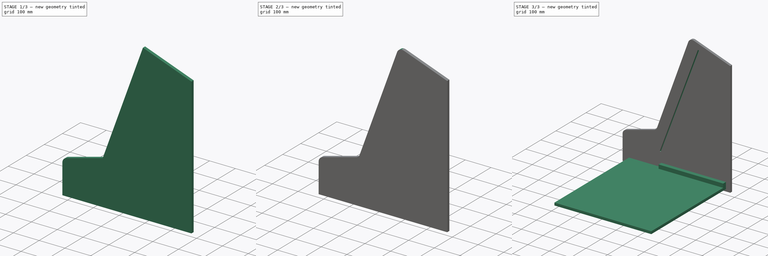
[diagram: build sequence overview — one tinted view per stage of 3, left to right]
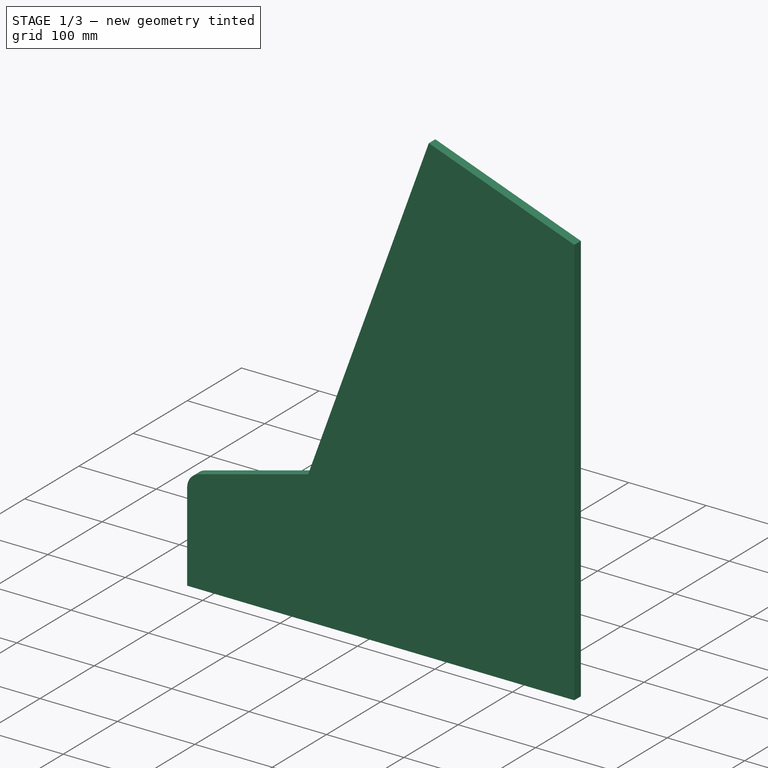
[diagram: stage 1 of 3 — iso view after this stage's code; geometry added in this stage tinted green]
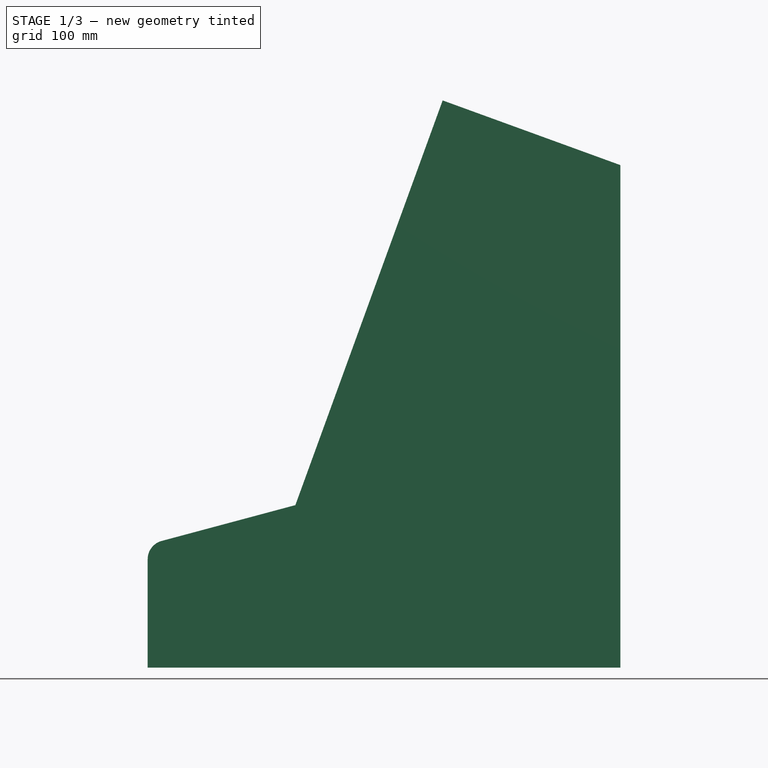
[diagram: stage 1 of 3 — front view after this stage's code; geometry added in this stage tinted green]
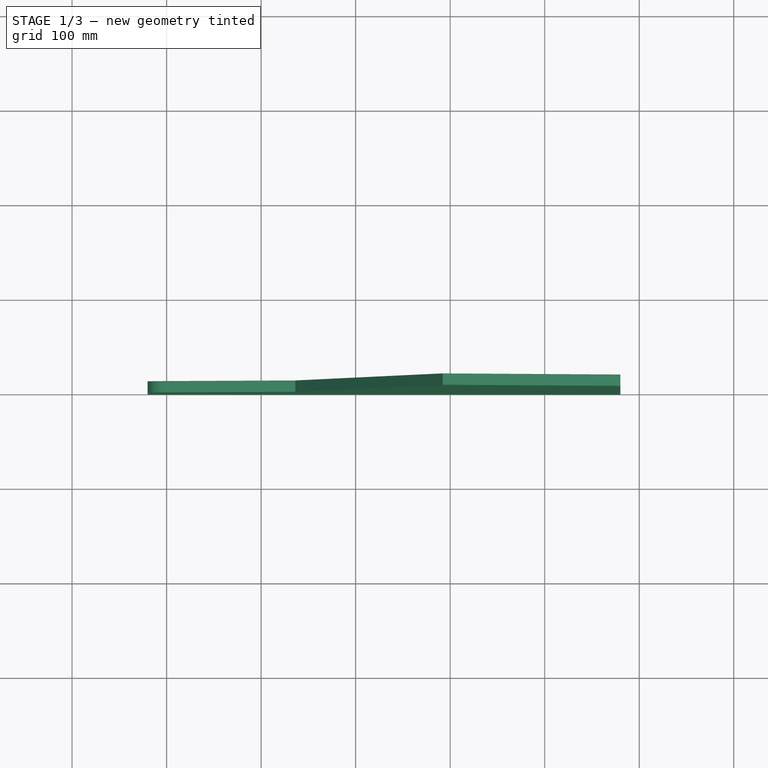
[diagram: stage 1 of 3 — top view after this stage's code; geometry added in this stage tinted green]
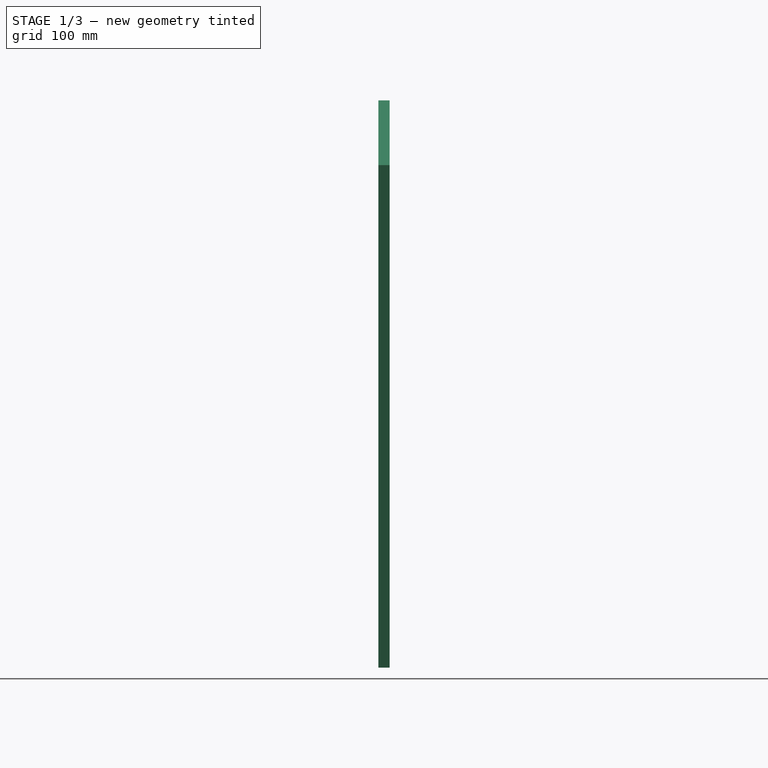
[diagram: stage 1 of 3 — right view after this stage's code; geometry added in this stage tinted green]
FCSTD DOCUMENT  (FreeCAD 0.19R24291 (Git))
Label: 9000_ASM_Profile_Sidewall_Schrinkwrap
License: All rights reserved
LicenseURL: http://en.wikipedia.org/wiki/All_rights_reserved
objects: Sketcher::SketchObject×7, PartDesign::Pad×3, PartDesign::Fillet×3, PartDesign::Pocket×2, Spreadsheet::Sheet×1, PartDesign::Body×1
note: 24 computed .brp shape members not serialized (recipe doc carries the construction recipe); baked Part::Feature solids carry a one-line shape summary decoded from their .brp

FEATURE [Spreadsheet::Sheet] Spreadsheet  label="XLS"
  cells = B2=BODY FLOOR; E2=Ext.Ref; B3=Z=; C3(Z)=12; D3=.T; E3=Thichness; F3=16mm or 19mm for chipboard; B4=Y=; C4=500; D4=.W; E4=Width; F4=12mm for Sperholtz ; B5=X=; C5=400; D5=.D; E5=Depth; B7=Position Side Wall; D8=Left; E8=Right; B9=X0; D9(X0)==+C5; B10=Y0; C10=Y0_2; D10(Y0)==+C4; E10(Y0_2)==+D10 - D11; B11=Z0; D11(Z0)=13; B15=Position Front Wall; B16=x; C16=X0_Front; D16(X0_Front)==+H16 * abs(cos(D19)); F16=Distance on incline; G16=nS; H16(nS)=50; I16=mm; B17=y; C17=Y0_Front; D17(Y0_Front)=0; B18=z; C18=Z0_Front; D18(Z0_Front)==+H16 * abs(sin(D19)) + H18 + H20; F18=Hight of Incline; G18=nH; H18(nH)==125 + 2; I18=mm; B19=angle; C19=angley; D19(angley)=-70; F20=Thickness Material; H20=13; B22=Position Pedastil; B23=x; C23=x_pedastil; D23(x_pedastil)=0; B24=y; C24=y_pedastil; D24(y_pedastil)=0; B25=z; C25=z_pedastil; D25(z_pedastil)=-716; B27=Position Marquee; B28=x; C28==x_pedastil; B29=y; C29==y_pedastil; B30=z; C30==z_pedastil; B31=Incline
FEATURE [Sketcher::SketchObject] Sketch001
  FullyConstrained = false
  MapMode = 5
  Placement = pos=(0,0,0) rot=(1,0,0;1.5708rad)
  Support = -> [XZ_Plane]
  sketch-geometry (8):
    g0: LineSegment StartX=-20 StartY=-20 StartZ=0 EndX=-20 EndY=110 EndZ=0
    g1: LineSegment StartX=-20 StartY=110 StartZ=0 EndX=136.232 EndY=151.862 EndZ=0
    g2: LineSegment StartX=136.232 StartY=151.862 StartZ=0 EndX=292.061 EndY=580 EndZ=0
    g3: LineSegment StartX=292.061 StartY=580 StartZ=0 EndX=480 EndY=511.596 EndZ=0
    g4: LineSegment StartX=480 StartY=511.596 StartZ=0 EndX=480 EndY=-20 EndZ=0
    g5: LineSegment StartX=480 StartY=-20 StartZ=0 EndX=-20 EndY=-20 EndZ=0
    g6: GeomPoint X=91.409 Y=222.047 Z=0
    g7: GeomPoint X=-20 Y=-20 Z=0
  constraints (20):
    c: Coincident(g0,g1)
    c: Coincident(g1,g2)
    c: Coincident(g3,g4)
    c: Coincident(g4,g5)
    c: Coincident(g5,g0)
    c: Horizontal(g5)
    c: Vertical(g4)
    c: Vertical(g0)
    c: Angle(g5,g2) = 1.22173
    c: Angle(g3,g4) = 1.91986
    c: DistanceY(g4,g4) = 531.596
    c: DistanceX(g5,g5) = 500
    c: DistanceY(g0,g0) = 130
    c: Angle(g0,g1) = 1.8326
    c: Coincident(g2,g3)
    c: DistanceX(g7,g-1) = 20
    c: DistanceY(g7,g-1) = 20
    c: Coincident(g0,g7)
    c: Distance(g3) = 200
    c: DistanceY(g4,g2) = 600
FEATURE [PartDesign::Pad] Pad
  AllowMultiFace = false
  Direction = (1,1,1)
  Length = 12
  Length2 = 100
  Placement = pos=(0,0,0) rot=(1,0,0;1.5708rad)
  Profile = -> Sketch001
  Reversed = true
  Type = 0
  expr: Length = Spreadsheet.Z
FEATURE [Sketcher::SketchObject] Sketch002
  ExternalGeometry = -> [Pad]
  FullyConstrained = false
  MapMode = 5
  Placement = pos=(0,0,0) rot=(1,0,0;1.5708rad)
  Support = -> [Pad]
  sketch-geometry (12):
    g0: LineSegment StartX=465 StartY=-5 StartZ=0 EndX=465 EndY=501.093 EndZ=0
    g1: LineSegment StartX=465 StartY=501.093 StartZ=0 EndX=301.027 EndY=560.774 EndZ=0
    g2: LineSegment StartX=301.027 StartY=560.774 StartZ=0 EndX=147.657 EndY=139.394 EndZ=0
    g3: Circle CenterX=384.615 CenterY=546.313 CenterZ=0 NormalX=0 NormalY=0 NormalZ=1 AngleXU=0 Radius=15
    g4: Circle CenterX=268.58 CenterY=515.485 CenterZ=0 NormalX=0 NormalY=0 NormalZ=1 AngleXU=0 Radius=15
    g5: Circle CenterX=48.9787 CenterY=128.483 CenterZ=0 NormalX=0 NormalY=0 NormalZ=1 AngleXU=0 Radius=15
    g6: Circle CenterX=-20 CenterY=42.1215 CenterZ=0 NormalX=0 NormalY=0 NormalZ=1 AngleXU=0 Radius=15
    g7: Circle CenterX=480 CenterY=85.1486 CenterZ=0 NormalX=0 NormalY=0 NormalZ=1 AngleXU=0 Radius=15
    g8: Circle CenterX=199.413 CenterY=-20 CenterZ=0 NormalX=0 NormalY=0 NormalZ=1 AngleXU=0 Radius=15
    g9: LineSegment StartX=147.657 StartY=139.394 StartZ=0 EndX=-5 EndY=98.4901 EndZ=0
    g10: LineSegment StartX=-5 StartY=-5 StartZ=0 EndX=465 EndY=-5 EndZ=0
    g11: LineSegment StartX=-5 StartY=-5 StartZ=0 EndX=-5 EndY=98.4901 EndZ=0
  constraints (30):
    c: Vertical(g0)
    c: Coincident(g1,g0)
    c: Coincident(g2,g1)
    c: PointOnObject(g3,g-5)
    c: Radius(g3) = 15
    c: Equal(g3,g4)
    c: Tangent(g1,g3)
    c: Tangent(g2,g4)
    c: Parallel(g1,g-5)
    c: Parallel(g2,g-4)
    c: PointOnObject(g4,g-4)
    c: PointOnObject(g5,g-3)
    c: Equal(g5,g4)
    c: PointOnObject(g6,g-8)
    c: PointOnObject(g7,g-6)
    c: Equal(g5,g6)
    c: PointOnObject(g8,g-7)
    c: Equal(g6,g8)
    c: Equal(g8,g7)
    c: Tangent(g7,g0)
    c: Coincident(g9,g2)
    c: Coincident(g10,g0)
    c: Tangent(g9,g5)
    c: Tangent(g10,g8)
    c: Parallel(g-7,g10)
    c: Parallel(g9,g-3)
    c: Coincident(g11,g10)
    c: Coincident(g11,g9)
    c: Tangent(g11,g6)
    c: Vertical(g11)
FEATURE [PartDesign::Pocket] Pocket
  BaseFeature = -> Pad
  Length = 1
  Length2 = 100
  Placement = pos=(0,0,0) rot=(1,0,0;1.5708rad)
  Profile = -> Sketch002
  Reversed = true
  Type = 0
FEATURE [Sketcher::SketchObject] Sketch
  FullyConstrained = true
  MapMode = 5
  Placement = pos=(0,0,0) rot=(1,0,0;1.5708rad)
  Support = -> [Pocket]
  sketch-geometry (8):
    g0: LineSegment StartX=-20 StartY=-20 StartZ=0 EndX=480 EndY=-20 EndZ=0
    g1: LineSegment StartX=480 StartY=580 StartZ=0 EndX=-20 EndY=580 EndZ=0
    g2: LineSegment StartX=-20 StartY=580 StartZ=0 EndX=-20 EndY=-20 EndZ=0
    g3: LineSegment StartX=480 StartY=580 StartZ=0 EndX=480 EndY=-20 EndZ=0
    g4: LineSegment StartX=-30 StartY=590 StartZ=0 EndX=480 EndY=590 EndZ=0
    g5: LineSegment StartX=480 StartY=590 StartZ=0 EndX=480 EndY=-20 EndZ=0
    g6: LineSegment StartX=480 StartY=-20 StartZ=0 EndX=-30 EndY=-20 EndZ=0
    g7: LineSegment StartX=-30 StartY=-20 StartZ=0 EndX=-30 EndY=590 EndZ=0
  constraints (23):
    c: Coincident(g1,g2)
    c: Perpendicular(g1,g2)
    c: Vertical(g2)
    c: Coincident(g2,g0)
    c: Horizontal(g0)
    c: DistanceY(g2,g2) = 600
    c: DistanceX(g0,g0) = 500
    c: DistanceY(g0,g-1) = 20
    c: DistanceX(g0,g-1) = 20
    c: Coincident(g3,g1)
    c: Coincident(g3,g0)
    c: Perpendicular(g3,g1)
    c: Coincident(g4,g5)
    c: Coincident(g5,g6)
    c: Coincident(g6,g7)
    c: Coincident(g7,g4)
    c: Horizontal(g4)
    c: Horizontal(g6)
    c: Vertical(g5)
    c: Vertical(g7)
    c: Coincident(g5,g0)
    c: DistanceX(g4,g4) = 510
    c: DistanceY(g7,g7) = 610
FEATURE [PartDesign::Fillet] Fillet
  Base = -> Pocket [Edge2]
  BaseFeature = -> Pocket
  Placement = pos=(0,0,0) rot=(1,0,0;1.5708rad)
  Radius = 20
  SupportTransform = false
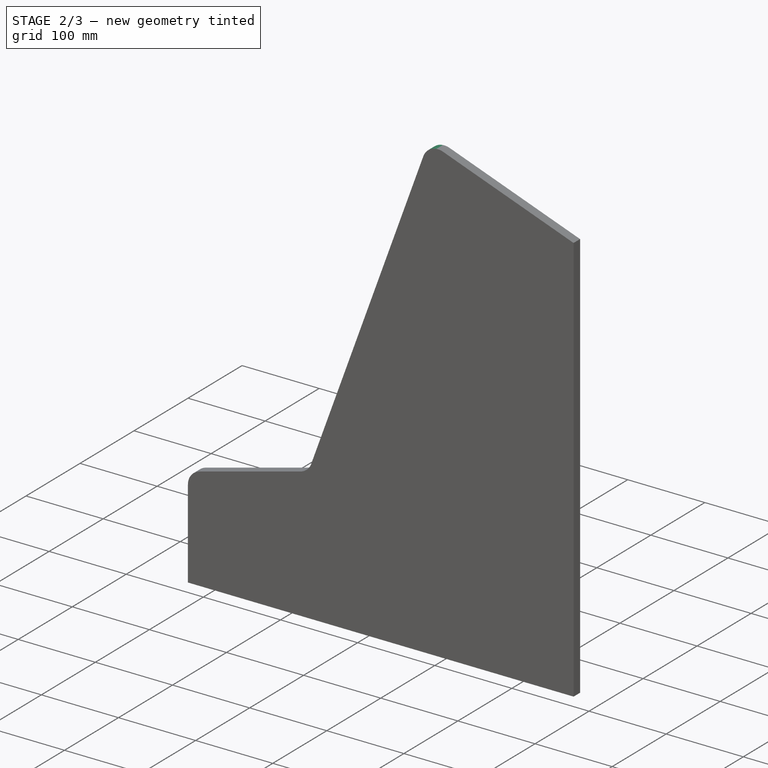
[diagram: stage 2 of 3 — iso view after this stage's code; geometry added in this stage tinted green]
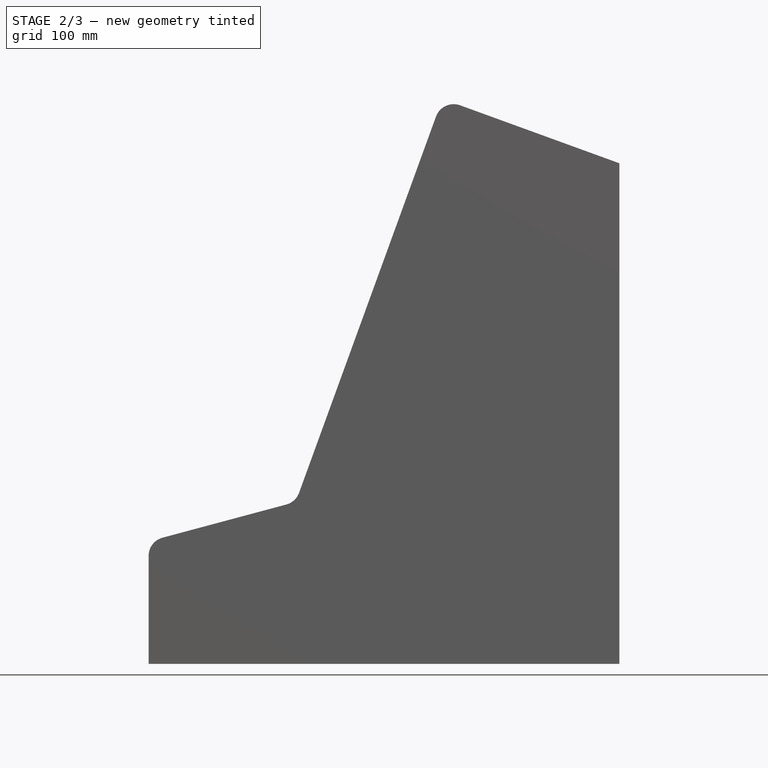
[diagram: stage 2 of 3 — front view after this stage's code; geometry added in this stage tinted green]
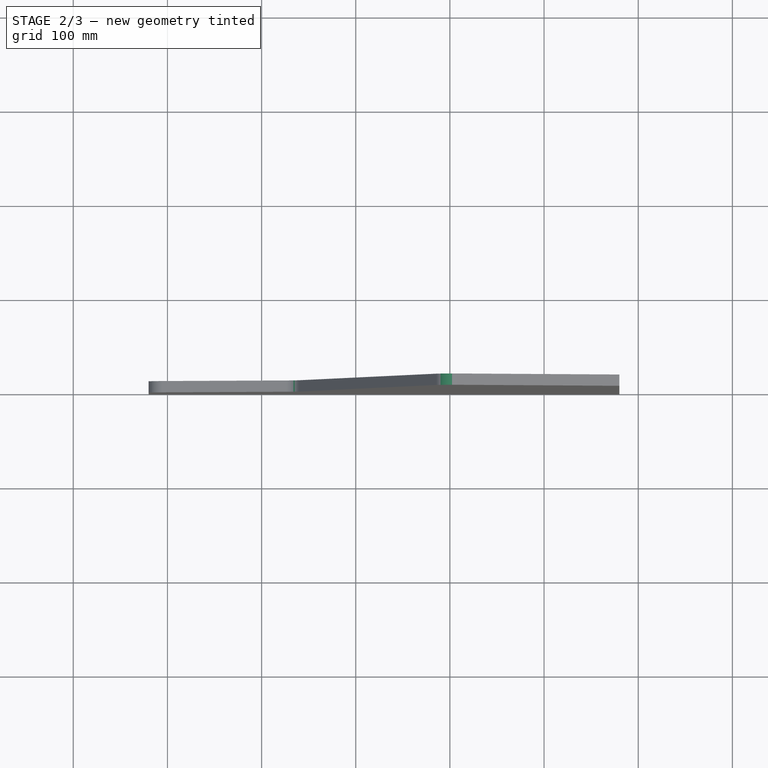
[diagram: stage 2 of 3 — top view after this stage's code; geometry added in this stage tinted green]
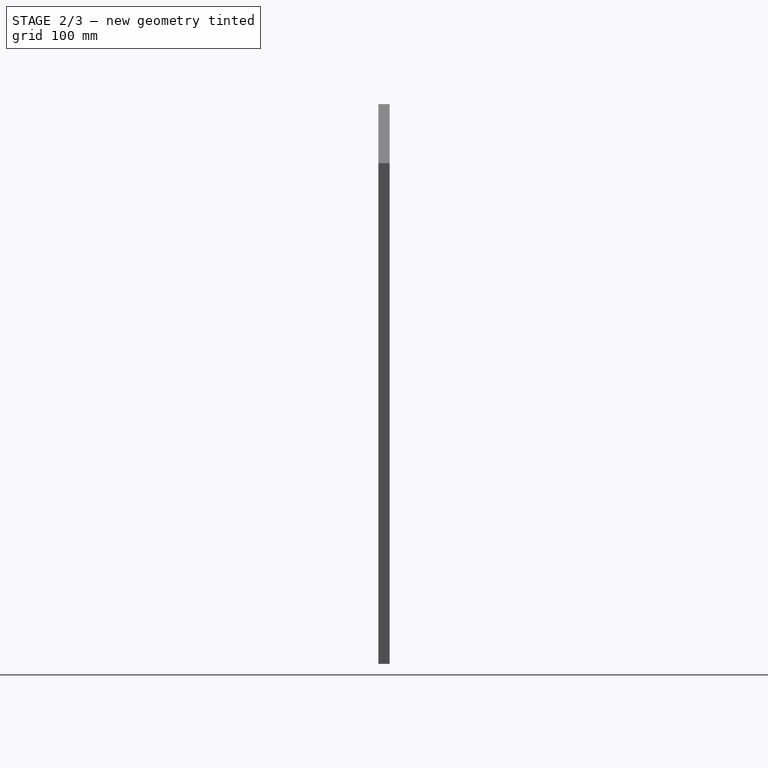
[diagram: stage 2 of 3 — right view after this stage's code; geometry added in this stage tinted green]
FEATURE [PartDesign::Fillet] Fillet001
  Base = -> Fillet [Edge25]
  BaseFeature = -> Fillet
  Placement = pos=(0,0,0) rot=(1,0,0;1.5708rad)
  Radius = 20
  SupportTransform = false
FEATURE [PartDesign::Fillet] Fillet002
  Base = -> Fillet001 [Edge22]
  BaseFeature = -> Fillet001
  Placement = pos=(0,0,0) rot=(1,0,0;1.5708rad)
  Radius = 20
  SupportTransform = false
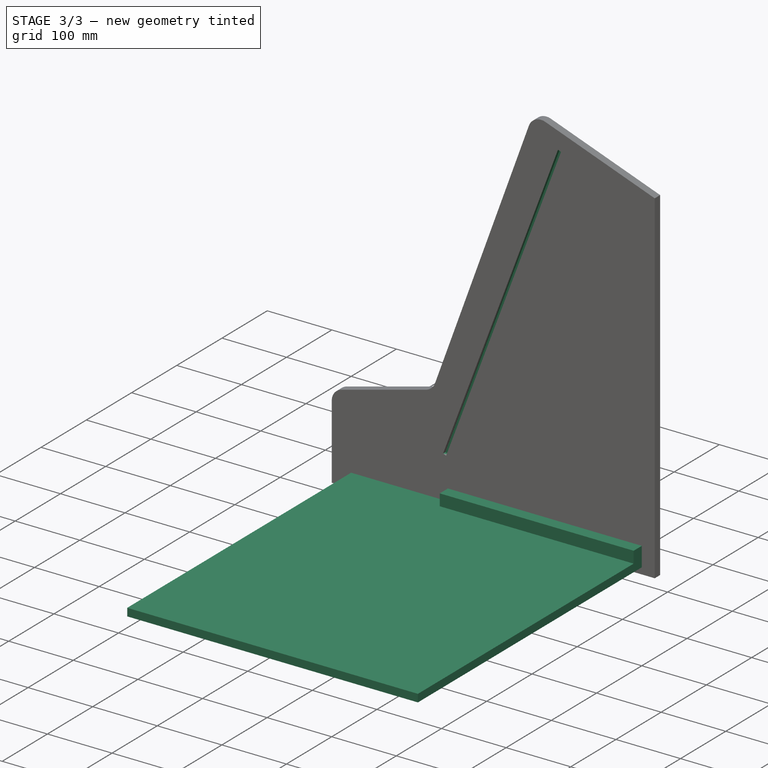
[diagram: stage 3 of 3 — iso view after this stage's code; geometry added in this stage tinted green]
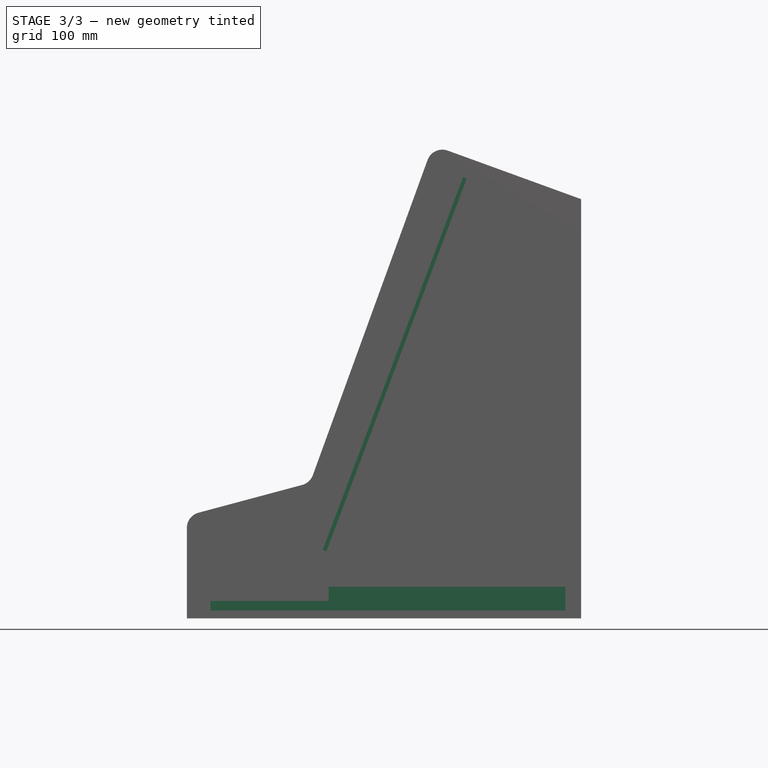
[diagram: stage 3 of 3 — front view after this stage's code; geometry added in this stage tinted green]
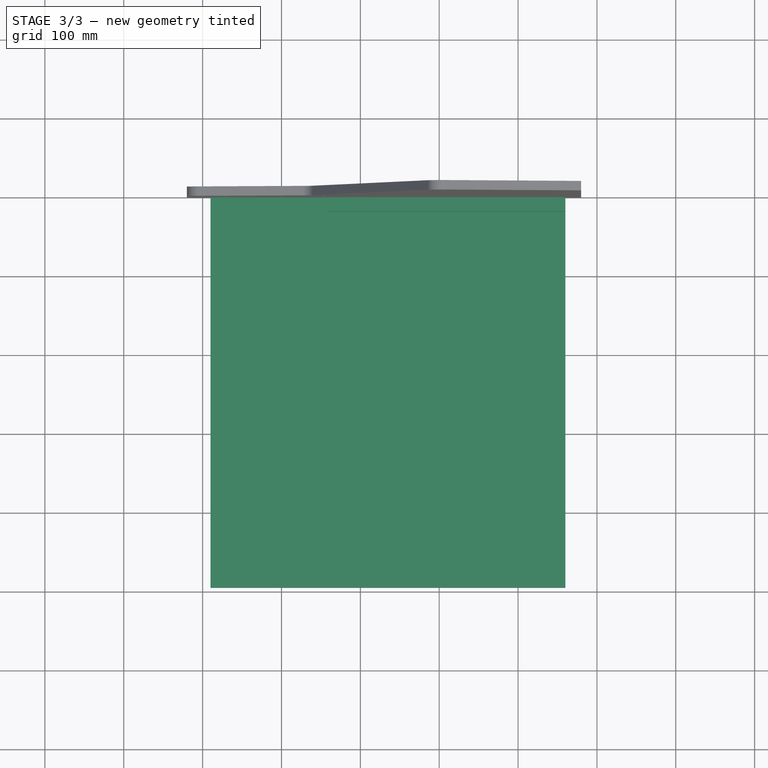
[diagram: stage 3 of 3 — top view after this stage's code; geometry added in this stage tinted green]
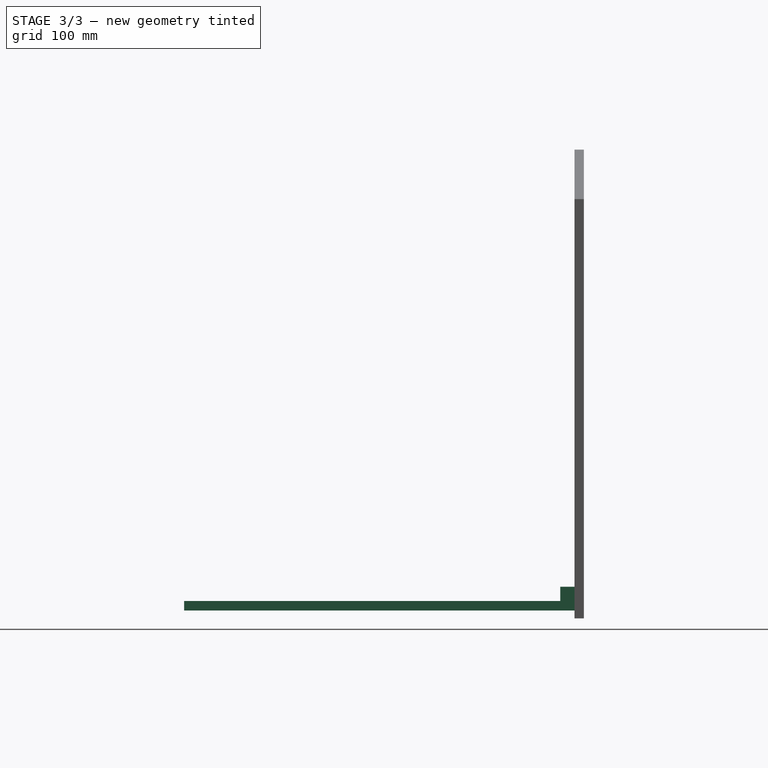
[diagram: stage 3 of 3 — right view after this stage's code; geometry added in this stage tinted green]
FEATURE [Sketcher::SketchObject] Sketch003
  ExternalGeometry = -> [Pocket]
  FullyConstrained = true
  MapMode = 5
  Placement = pos=(0,0,0) rot=(1,0,0;1.5708rad)
  Support = -> [Pocket]
  sketch-geometry (8):
    g0: LineSegment StartX=480 StartY=511.596 StartZ=0 EndX=343.745 EndY=561.189 EndZ=0
    g1: LineSegment StartX=480 StartY=-20 StartZ=0 EndX=125 EndY=-20 EndZ=0
    g2: LineSegment StartX=343.745 StartY=561.189 StartZ=0 EndX=334.938 EndY=537.791 EndZ=0
    g3: LineSegment StartX=334.938 StartY=537.791 StartZ=0 EndX=157.052 EndY=65.1589 EndZ=0
    g4: LineSegment StartX=157.052 StartY=65.1589 StartZ=0 EndX=125 EndY=-20 EndZ=0
    g5: LineSegment StartX=157.052 StartY=65.1589 StartZ=0 EndX=152.372 EndY=66.9202 EndZ=0
    g6: LineSegment StartX=152.372 StartY=66.9202 StartZ=0 EndX=330.259 EndY=539.553 EndZ=0
    g7: LineSegment StartX=330.259 StartY=539.553 StartZ=0 EndX=334.938 EndY=537.791 EndZ=0
  constraints (24):
    c: Coincident(g0,g-5)
    c: PointOnObject(g0,g-5)
    c: Distance(g0) = 145
    c: Coincident(g1,g-3)
    c: Horizontal(g1)
    c: Coincident(g2,g0)
    c: Coincident(g3,g2)
    c: Coincident(g4,g3)
    c: Coincident(g4,g1)
    c: Parallel(g4,g3)
    c: Parallel(g3,g2)
    c: Distance(g3) = 505
    c: Distance(g2) = 25
    c: Coincident(g5,g3)
    c: Coincident(g6,g5)
    c: Coincident(g7,g6)
    c: Coincident(g7,g3)
    c: Equal(g7,g5)
    c: Perpendicular(g3,g7)
    c: Equal(g6,g3)
    c: Distance(g5) = 5
    c: DistanceX(g-6,g1) = 145
    c: DistanceX(g-6,g5) = 172.372
    c: DistanceY(g1,g5) = 86.9202
FEATURE [PartDesign::Pocket] Pocket001
  BaseFeature = -> Fillet002
  Length = 5
  Length2 = 100
  Placement = pos=(0,0,0) rot=(1,0,0;1.5708rad)
  Profile = -> Sketch003
  Type = 0
FEATURE [Sketcher::SketchObject] Sketch004
  ExternalGeometry = -> [Pocket001]
  FullyConstrained = false
  MapMode = 5
  Placement = pos=(0,0,0) rot=(1,0,0;1.5708rad)
  Support = -> [Pocket001]
  sketch-geometry (5):
    g0: LineSegment StartX=10 StartY=2 StartZ=0 EndX=460 EndY=2 EndZ=0
    g1: LineSegment StartX=460 StartY=2 StartZ=0 EndX=460 EndY=-10 EndZ=0
    g2: LineSegment StartX=460 StartY=-10 StartZ=0 EndX=10 EndY=-10 EndZ=0
    g3: LineSegment StartX=10 StartY=-10 StartZ=0 EndX=10 EndY=2 EndZ=0
    g4: GeomPoint X=2.09569 Y=-20 Z=0
  constraints (13):
    c: Coincident(g0,g1)
    c: Coincident(g1,g2)
    c: Coincident(g2,g3)
    c: Coincident(g3,g0)
    c: Horizontal(g0)
    c: Horizontal(g2)
    c: Vertical(g1)
    c: Vertical(g3)
    c: DistanceY(g1,g0) = 12
    c: PointOnObject(g4,g-4)
    c: DistanceY(g-4,g2) = 10
    c: DistanceX(g-4,g2) = 30
    c: DistanceX(g0,g-4) = 20
FEATURE [PartDesign::Pad] Pad001
  BaseFeature = -> Pocket001
  Direction = (1,1,1)
  Length = 495
  Length2 = 100
  Placement = pos=(0,0,0) rot=(1,0,0;1.5708rad)
  Profile = -> Sketch004
  Type = 0
FEATURE [Sketcher::SketchObject] Sketch005
  ExternalGeometry = -> [Pad001]
  FullyConstrained = false
  MapMode = 5
  Placement = pos=(0,0,0) rot=(1,0,0;1.5708rad)
  Support = -> [Pad001]
  sketch-geometry (6):
    g0: LineSegment StartX=159.85 StartY=20 StartZ=0 EndX=460 EndY=20 EndZ=0
    g1: LineSegment StartX=460 StartY=20 StartZ=0 EndX=460 EndY=2 EndZ=0
    g2: LineSegment StartX=460 StartY=2 StartZ=0 EndX=159.85 EndY=2 EndZ=0
    g3: LineSegment StartX=159.85 StartY=2 StartZ=0 EndX=159.85 EndY=20 EndZ=0
    g4: GeomPoint X=460 Y=2 Z=0
    g5: GeomPoint X=460 Y=2 Z=0
  constraints (12):
    c: Coincident(g0,g1)
    c: Coincident(g1,g2)
    c: Horizontal(g0)
    c: Horizontal(g2)
    c: Vertical(g1)
    c: DistanceY(g1,g1) = 18
    c: Coincident(g3,g2)
    c: Coincident(g3,g0)
    c: Vertical(g3)
    c: Coincident(g4,g-4)
    c: Coincident(g5,g1)
    c: Coincident(g1,g4)
FEATURE [PartDesign::Pad] Pad002
  BaseFeature = -> Pad001
  Direction = (1,1,1)
  Length = 18
  Length2 = 100
  Placement = pos=(0,0,0) rot=(1,0,0;1.5708rad)
  Profile = -> Sketch005
  Type = 0
FEATURE [Sketcher::SketchObject] Sketch006
  ExternalGeometry = -> [Pad002]
  FullyConstrained = false
  MapMode = 5
  Placement = pos=(0,0,0) rot=(1,0,0;1.5708rad)
  Support = -> [Pad002]
  sketch-geometry (13):
    g0: LineSegment StartX=460 StartY=2 StartZ=0 EndX=600 EndY=2 EndZ=0
    g1: LineSegment StartX=600 StartY=2 StartZ=0 EndX=600 EndY=52 EndZ=0
    g2: LineSegment StartX=600 StartY=52 StartZ=0 EndX=460 EndY=52 EndZ=0
    g3: LineSegment StartX=460 StartY=52 StartZ=0 EndX=460 EndY=2 EndZ=0
    g4: LineSegment StartX=460 StartY=52 StartZ=0 EndX=54.972 EndY=52 EndZ=0
    g5: LineSegment StartX=54.972 StartY=52 StartZ=0 EndX=54.972 EndY=92 EndZ=0
    g6: LineSegment StartX=54.972 StartY=92 StartZ=0 EndX=460 EndY=92 EndZ=0
    g7: LineSegment StartX=460 StartY=92 StartZ=0 EndX=460 EndY=52 EndZ=0
    g8: LineSegment StartX=16 StartY=-9.62951 StartZ=0 EndX=16 EndY=20.3705 EndZ=0
    g9: LineSegment StartX=460 StartY=2 StartZ=0 EndX=430 EndY=2 EndZ=0
    g10: LineSegment StartX=430 StartY=2 StartZ=0 EndX=430 EndY=-7.33353 EndZ=0
    g11: LineSegment StartX=430 StartY=-7.33353 StartZ=0 EndX=460 EndY=-7.33353 EndZ=0
    g12: LineSegment StartX=460 StartY=-7.33353 StartZ=0 EndX=460 EndY=2 EndZ=0
  constraints (33):
    c: Coincident(g0,g1)
    c: Coincident(g1,g2)
    c: Coincident(g2,g3)
    c: Coincident(g3,g0)
    c: Horizontal(g0)
    c: Horizontal(g2)
    c: Vertical(g1)
    c: Vertical(g3)
    c: Coincident(g0,g-4)
    c: DistanceY(g3,g3) = 50
    c: DistanceX(g2,g2) = 140
    c: Coincident(g4,g5)
    c: Coincident(g5,g6)
    c: Coincident(g6,g7)
    c: Coincident(g7,g4)
    c: Horizontal(g4)
    c: Horizontal(g6)
    c: Vertical(g5)
    c: Vertical(g7)
    c: Coincident(g4,g2)
    c: DistanceY(g7,g7) = 40
    c: Vertical(g8)
    c: Coincident(g9,g10)
    c: Coincident(g10,g11)
    c: Coincident(g11,g12)
    c: Coincident(g12,g9)
    c: Horizontal(g9)
    c: Horizontal(g11)
    c: Vertical(g10)
    c: Vertical(g12)
    c: Coincident(g9,g0)
    c: DistanceX(g11,g11) = 30
    c: DistanceY(g8,g8) = 30
FEATURE [PartDesign::Body] Body
  Group = -> [Sketch001,Pad,Sketch002,Pocket,Fillet,Fillet001,Fillet002,Sketch003,Pocket001,Sketch004,Pad001,Sketch005,Pad002,Sketch006]
  Origin = -> Origin
  Tip = -> Pad002
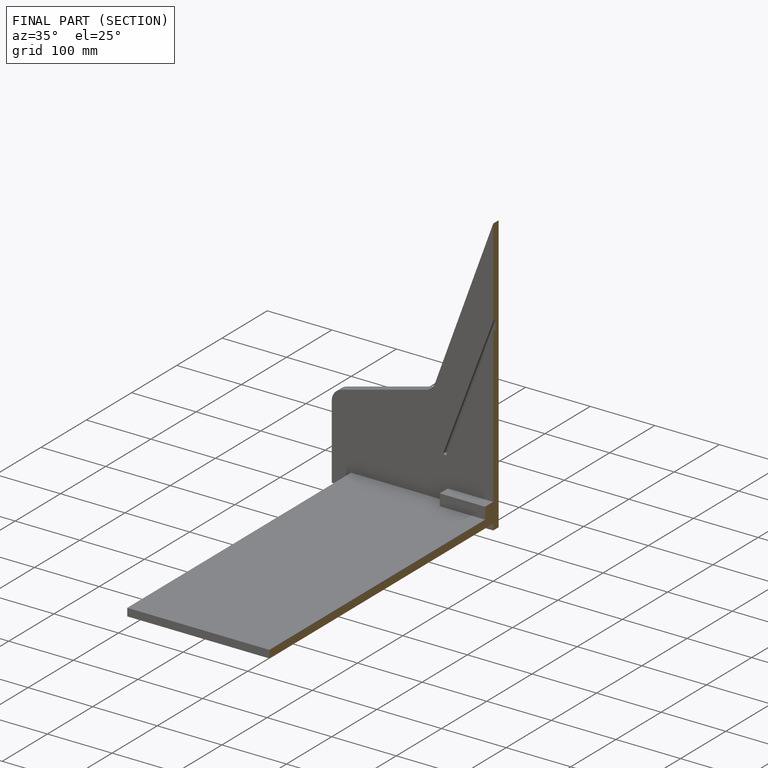
[diagram: finished part — half-section view (interior)]
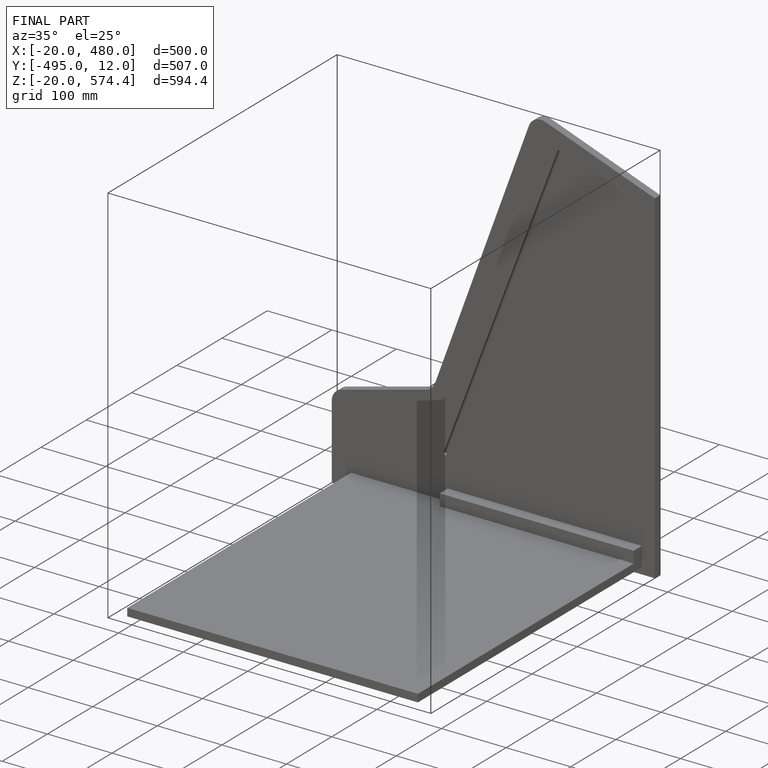
[diagram: finished part — iso view with bounding-box wireframe]
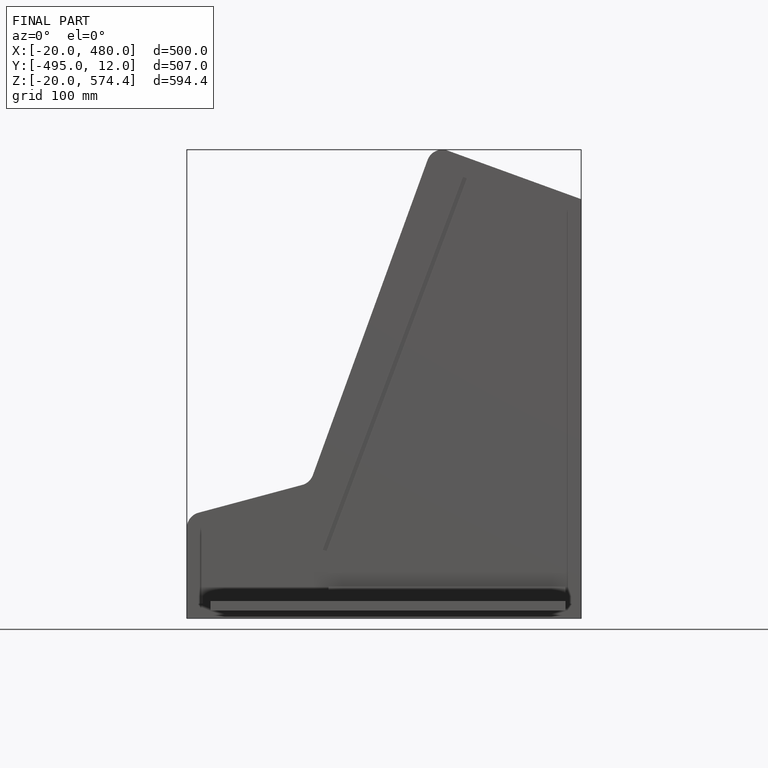
[diagram: finished part — front view with bounding-box wireframe]
